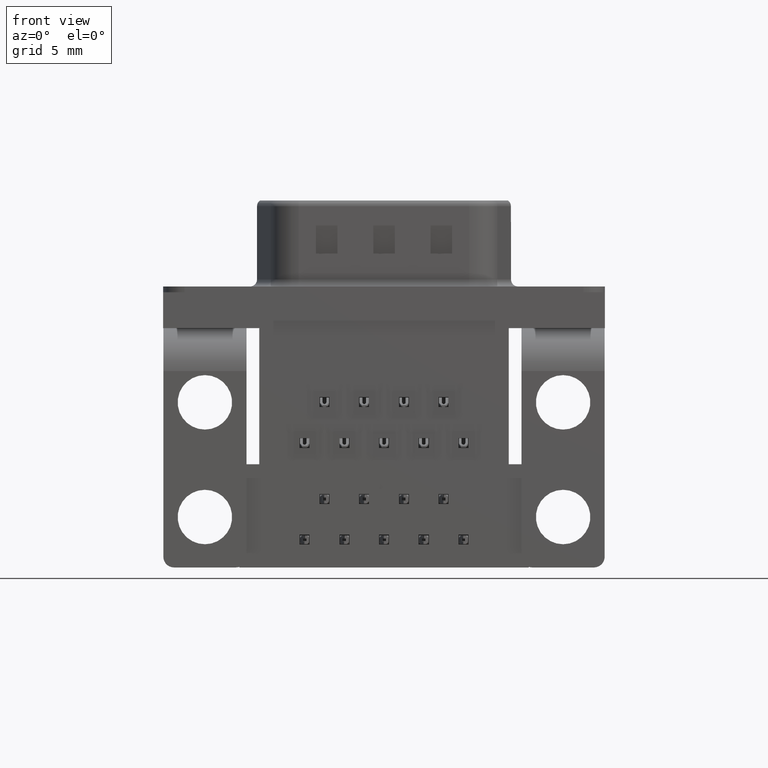
[diagram: clean part render]
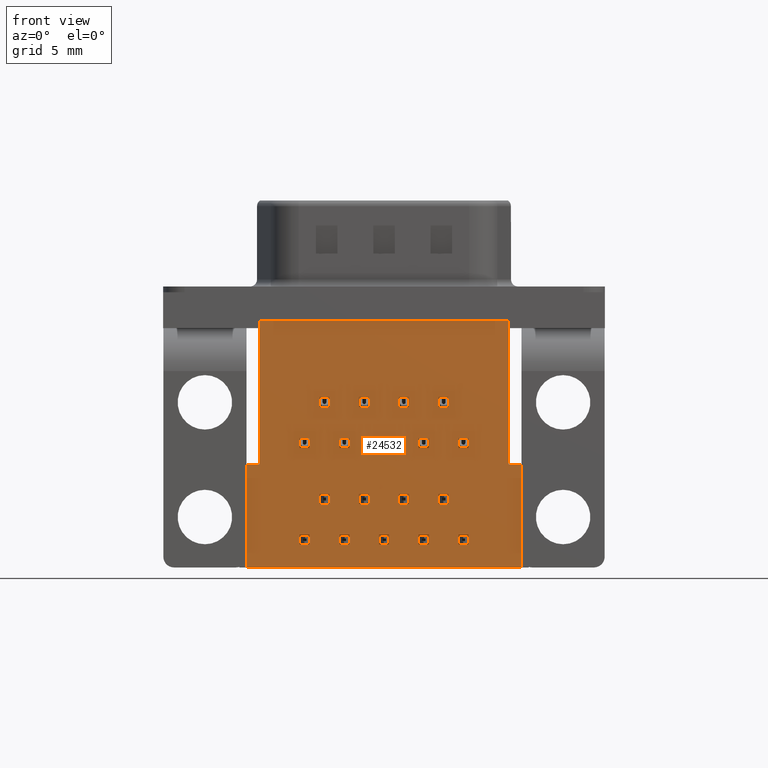
[diagram: same view with one face highlighted and labeled with its STEP entity id]
A machine part, front view. The second image highlights one B-rep face of the part: STEP entity #24532.
In plain terms, the highlighted planar face has unit normal (0, -1, 0).
Its self-contained STEP definition (entity closure, byte-faithful):
#91 = VECTOR ( 'NONE', #23050, 1000.000000000000000 ) ;
#117 = FACE_BOUND ( 'NONE', #23553, .T. ) ;
#151 = DIRECTION ( 'NONE',  ( -1.000000000000000000, -0.0000000000000000000, -0.0000000000000000000 ) ) ;
#232 = EDGE_CURVE ( 'NONE', #14148, #34290, #11617, .T. ) ;
#280 = FACE_BOUND ( 'NONE', #1846, .T. ) ;
#295 = VECTOR ( 'NONE', #21861, 1000.000000000000000 ) ;
#459 = CARTESIAN_POINT ( 'NONE',  ( 8.690000000000003055, -5.925000000000001599, -14.78720000000000212 ) ) ;
#564 = ORIENTED_EDGE ( 'NONE', *, *, #23347, .F. ) ;
#606 = CARTESIAN_POINT ( 'NONE',  ( 21.19999999999999218, -5.924999999999999822, -2.000000000000000000 ) ) ;
#678 = EDGE_CURVE ( 'NONE', #30499, #5759, #14402, .T. ) ;
#727 = VERTEX_POINT ( 'NONE', #9645 ) ;
#750 = VECTOR ( 'NONE', #2064, 1000.000000000000000 ) ;
#801 = DIRECTION ( 'NONE',  ( 4.956352788505156365E-15, -0.0000000000000000000, 1.000000000000000000 ) ) ;
#821 = CARTESIAN_POINT ( 'NONE',  ( 8.689999999999988844, -5.925000000000001599, -8.027200000000004110 ) ) ;
#822 = EDGE_CURVE ( 'NONE', #20680, #23960, #31979, .T. ) ;
#918 = EDGE_CURVE ( 'NONE', #2737, #18572, #7705, .T. ) ;
#969 = CARTESIAN_POINT ( 'NONE',  ( 18.38499999999999091, -5.925000000000003375, -10.16719999999999757 ) ) ;
#980 = VERTEX_POINT ( 'NONE', #606 ) ;
#1008 = DIRECTION ( 'NONE',  ( 4.956352788505156365E-15, -0.0000000000000000000, 1.000000000000000000 ) ) ;
#1047 = EDGE_CURVE ( 'NONE', #28734, #23772, #16148, .T. ) ;
#1124 = CARTESIAN_POINT ( 'NONE',  ( 10.07499999999998330, -5.925000000000001599, -16.92719999999999914 ) ) ;
#1184 = VERTEX_POINT ( 'NONE', #3759 ) ;
#1263 = LINE ( 'NONE', #9932, #23881 ) ;
#1282 = EDGE_CURVE ( 'NONE', #29125, #31529, #12398, .T. ) ;
#1356 = EDGE_CURVE ( 'NONE', #16678, #9942, #11295, .T. ) ;
#1413 = ORIENTED_EDGE ( 'NONE', *, *, #11856, .T. ) ;
#1544 = VECTOR ( 'NONE', #13514, 1000.000000000000000 ) ;
#1549 = CARTESIAN_POINT ( 'NONE',  ( 12.84499999999998465, -5.925000000000002487, -16.92719999999999914 ) ) ;
#1562 = VECTOR ( 'NONE', #9113, 1000.000000000000000 ) ;
#1634 = EDGE_LOOP ( 'NONE', ( #28608, #10564, #30595, #32843, #15238, #1413, #24920, #29091, #26674, #29934 ) ) ;
#1651 = CARTESIAN_POINT ( 'NONE',  ( 18.38499999999998735, -5.924999999999999822, -16.92719999999999914 ) ) ;
#1846 = EDGE_LOOP ( 'NONE', ( #29625, #8422, #14444, #22327 ) ) ;
#1861 = DIRECTION ( 'NONE',  ( 0.0000000000000000000, 0.0000000000000000000, -1.000000000000000000 ) ) ;
#1898 = VERTEX_POINT ( 'NONE', #17907 ) ;
#1931 = ORIENTED_EDGE ( 'NONE', *, *, #31048, .F. ) ;
#2015 = ORIENTED_EDGE ( 'NONE', *, *, #12274, .F. ) ;
#2064 = DIRECTION ( 'NONE',  ( -0.0000000000000000000, -0.0000000000000000000, 1.000000000000000000 ) ) ;
#2108 = ORIENTED_EDGE ( 'NONE', *, *, #22059, .F. ) ;
#2175 = CARTESIAN_POINT ( 'NONE',  ( 13.52999999999999403, -5.925000000000002487, -14.78720000000000034 ) ) ;
#2209 = CARTESIAN_POINT ( 'NONE',  ( 21.19999999999999218, -5.924999999999999822, -2.500000000000000444 ) ) ;
#2223 = EDGE_CURVE ( 'NONE', #13905, #17702, #23126, .T. ) ;
#2238 = FACE_BOUND ( 'NONE', #12497, .T. ) ;
#2253 = CARTESIAN_POINT ( 'NONE',  ( 18.38499999999999091, -5.924999999999999822, -10.16719999999999757 ) ) ;
#2287 = DIRECTION ( 'NONE',  ( 0.0000000000000000000, 0.0000000000000000000, -1.000000000000000000 ) ) ;
#2423 = LINE ( 'NONE', #23192, #8221 ) ;
#2448 = LINE ( 'NONE', #10051, #29060 ) ;
#2528 = DIRECTION ( 'NONE',  ( -1.000000000000000000, -0.0000000000000000000, -0.0000000000000000000 ) ) ;
#2550 = LINE ( 'NONE', #26308, #33159 ) ;
#2588 = CARTESIAN_POINT ( 'NONE',  ( 7.304999999999985505, -5.925000000000001599, -10.16719999999999935 ) ) ;
#2601 = ORIENTED_EDGE ( 'NONE', *, *, #14982, .F. ) ;
#2737 = VERTEX_POINT ( 'NONE', #30490 ) ;
#2769 = DIRECTION ( 'NONE',  ( 0.0000000000000000000, -1.000000000000000000, 0.0000000000000000000 ) ) ;
#2857 = EDGE_LOOP ( 'NONE', ( #17806, #4375, #33770, #27616 ) ) ;
#2870 = CARTESIAN_POINT ( 'NONE',  ( 3.789999999999997371, -5.924999999999999822, -2.500000000000000444 ) ) ;
#3049 = VECTOR ( 'NONE', #32177, 1000.000000000000000 ) ;
#3380 = VERTEX_POINT ( 'NONE', #25661 ) ;
#3382 = VERTEX_POINT ( 'NONE', #1549 ) ;
#3423 = EDGE_LOOP ( 'NONE', ( #2601, #29573, #18504, #29321 ) ) ;
#3477 = CARTESIAN_POINT ( 'NONE',  ( 11.45999999999999375, -5.924999999999999822, -7.327200000000002156 ) ) ;
#3486 = CARTESIAN_POINT ( 'NONE',  ( 6.604999999999982663, -5.925000000000001599, -17.62720000000000198 ) ) ;
#3515 = CARTESIAN_POINT ( 'NONE',  ( 14.91499999999998671, -5.925000000000002487, -16.92719999999999914 ) ) ;
#3589 = VERTEX_POINT ( 'NONE', #821 ) ;
#3709 = VERTEX_POINT ( 'NONE', #27920 ) ;
#3759 = CARTESIAN_POINT ( 'NONE',  ( 12.14499999999998536, -5.925000000000002487, -10.86719999999999864 ) ) ;
#3799 = VERTEX_POINT ( 'NONE', #7003 ) ;
#3869 = LINE ( 'NONE', #14634, #91 ) ;
#3924 = EDGE_LOOP ( 'NONE', ( #8217, #32754, #5484, #15186 ) ) ;
#4036 = EDGE_CURVE ( 'NONE', #21354, #14283, #12185, .T. ) ;
#4044 = CARTESIAN_POINT ( 'NONE',  ( 10.07499999999998330, -5.925000000000001599, -10.86720000000000041 ) ) ;
#4136 = CARTESIAN_POINT ( 'NONE',  ( 14.91499999999998671, -5.925000000000002487, -10.16719999999999757 ) ) ;
#4137 = CARTESIAN_POINT ( 'NONE',  ( 15.61499999999998600, -5.925000000000003375, -16.92719999999999914 ) ) ;
#4266 = EDGE_CURVE ( 'NONE', #16104, #11771, #33086, .T. ) ;
#4292 = CARTESIAN_POINT ( 'NONE',  ( 17.68499999999998806, -5.925000000000003375, -10.16719999999999757 ) ) ;
#4308 = DIRECTION ( 'NONE',  ( -1.000000000000000000, 0.0000000000000000000, 0.0000000000000000000 ) ) ;
#4312 = ORIENTED_EDGE ( 'NONE', *, *, #7113, .F. ) ;
#4329 = CARTESIAN_POINT ( 'NONE',  ( 12.14499999999998536, -5.925000000000002487, -17.62720000000000198 ) ) ;
#4348 = LINE ( 'NONE', #15104, #34395 ) ;
#4354 = CARTESIAN_POINT ( 'NONE',  ( 17.68499999999998806, -5.925000000000003375, -10.86719999999999864 ) ) ;
#4353 = VECTOR ( 'NONE', #12021, 1000.000000000000000 ) ;
#4374 = VECTOR ( 'NONE', #29148, 1000.000000000000000 ) ;
#4375 = ORIENTED_EDGE ( 'NONE', *, *, #21608, .F. ) ;
#4380 = DIRECTION ( 'NONE',  ( 1.000000000000000000, -1.239088197126279822E-15, 0.0000000000000000000 ) ) ;
#4393 = VECTOR ( 'NONE', #1861, 1000.000000000000000 ) ;
#4468 = CARTESIAN_POINT ( 'NONE',  ( 12.14499999999998536, -5.925000000000002487, -17.62720000000000198 ) ) ;
#4503 = LINE ( 'NONE', #4683, #28898 ) ;
#4518 = LINE ( 'NONE', #13169, #18480 ) ;
#4541 = EDGE_CURVE ( 'NONE', #19804, #9103, #13216, .T. ) ;
#4646 = EDGE_CURVE ( 'NONE', #22242, #21084, #20946, .T. ) ;
#4663 = CARTESIAN_POINT ( 'NONE',  ( 16.29999999999999005, -5.925000000000003375, -7.327200000000001268 ) ) ;
#4683 = CARTESIAN_POINT ( 'NONE',  ( 15.61499999999998600, -5.925000000000003375, -16.92719999999999914 ) ) ;
#4699 = CARTESIAN_POINT ( 'NONE',  ( 13.52999999999999403, -5.925000000000002487, -14.08719999999999928 ) ) ;
#4746 = LINE ( 'NONE', #9517, #34783 ) ;
#4799 = LINE ( 'NONE', #15547, #25664 ) ;
#4941 = LINE ( 'NONE', #26410, #32790 ) ;
#4949 = VECTOR ( 'NONE', #7102, 1000.000000000000000 ) ;
#5088 = CARTESIAN_POINT ( 'NONE',  ( 10.75999999999999446, -5.925000000000001599, -14.08719999999999928 ) ) ;
#5113 = CARTESIAN_POINT ( 'NONE',  ( 9.374999999999984013, -5.925000000000001599, -17.62720000000000198 ) ) ;
#5136 = VECTOR ( 'NONE', #28178, 1000.000000000000000 ) ;
#5160 = VECTOR ( 'NONE', #151, 1000.000000000000000 ) ;
#5293 = VERTEX_POINT ( 'NONE', #33340 ) ;
#5382 = LINE ( 'NONE', #24535, #13043 ) ;
#5471 = VECTOR ( 'NONE', #14698, 1000.000000000000000 ) ;
#5484 = ORIENTED_EDGE ( 'NONE', *, *, #5628, .F. ) ;
#5598 = VERTEX_POINT ( 'NONE', #6048 ) ;
#5628 = EDGE_CURVE ( 'NONE', #8246, #31333, #20297, .T. ) ;
#5688 = EDGE_CURVE ( 'NONE', #22279, #3380, #33133, .T. ) ;
#5759 = VERTEX_POINT ( 'NONE', #32369 ) ;
#5765 = VECTOR ( 'NONE', #29472, 1000.000000000000000 ) ;
#5868 = EDGE_LOOP ( 'NONE', ( #19425, #564, #9329, #6978 ) ) ;
#5942 = CARTESIAN_POINT ( 'NONE',  ( 14.91499999999998671, -5.925000000000002487, -16.92719999999999914 ) ) ;
#6048 = CARTESIAN_POINT ( 'NONE',  ( 12.14499999999998536, -5.925000000000002487, -16.92719999999999914 ) ) ;
#6055 = DIRECTION ( 'NONE',  ( -9.912705577010287487E-15, -0.0000000000000000000, 1.000000000000000000 ) ) ;
#6224 = CARTESIAN_POINT ( 'NONE',  ( 14.22999999999999332, -5.924999999999999822, -7.327200000000001268 ) ) ;
#6334 = DIRECTION ( 'NONE',  ( 0.0000000000000000000, 0.0000000000000000000, -1.000000000000000000 ) ) ;
#6417 = EDGE_LOOP ( 'NONE', ( #12957, #33348, #23156, #20797 ) ) ;
#6447 = VERTEX_POINT ( 'NONE', #33877 ) ;
#6515 = EDGE_CURVE ( 'NONE', #24044, #1184, #15774, .T. ) ;
#6677 = DIRECTION ( 'NONE',  ( -1.000000000000000000, -0.0000000000000000000, -0.0000000000000000000 ) ) ;
#6740 = LINE ( 'NONE', #17818, #4353 ) ;
#6753 = LINE ( 'NONE', #23097, #28347 ) ;
#6819 = DIRECTION ( 'NONE',  ( 4.956352788505162676E-15, -0.0000000000000000000, 1.000000000000000000 ) ) ;
#6891 = EDGE_CURVE ( 'NONE', #22531, #2737, #4348, .T. ) ;
#6978 = ORIENTED_EDGE ( 'NONE', *, *, #16746, .F. ) ;
#6998 = CARTESIAN_POINT ( 'NONE',  ( 2.899999999999996358, -5.924999999999999822, -12.00000000000000000 ) ) ;
#7003 = CARTESIAN_POINT ( 'NONE',  ( 14.22999999999999332, -5.925000000000002487, -8.027200000000002333 ) ) ;
#7079 = LINE ( 'NONE', #20453, #12869 ) ;
#7102 = DIRECTION ( 'NONE',  ( 4.956352788505156365E-15, -0.0000000000000000000, 1.000000000000000000 ) ) ;
#7104 = DIRECTION ( 'NONE',  ( 1.000000000000000000, 0.0000000000000000000, 0.0000000000000000000 ) ) ;
#7113 = EDGE_CURVE ( 'NONE', #34781, #19804, #34815, .T. ) ;
#7122 = CARTESIAN_POINT ( 'NONE',  ( 9.374999999999984013, -5.925000000000001599, -10.16719999999999935 ) ) ;
#7154 = CARTESIAN_POINT ( 'NONE',  ( 10.75999999999999091, -5.925000000000001599, -14.78720000000000034 ) ) ;
#7204 = CARTESIAN_POINT ( 'NONE',  ( 6.604999999999982663, -5.925000000000001599, -16.92719999999999914 ) ) ;
#7206 = VERTEX_POINT ( 'NONE', #24922 ) ;
#7258 = ORIENTED_EDGE ( 'NONE', *, *, #232, .F. ) ;
#7302 = VERTEX_POINT ( 'NONE', #8425 ) ;
#7395 = ORIENTED_EDGE ( 'NONE', *, *, #6891, .F. ) ;
#7463 = CARTESIAN_POINT ( 'NONE',  ( 6.604999999999982663, -5.925000000000001599, -10.16719999999999935 ) ) ;
#7480 = VECTOR ( 'NONE', #18270, 1000.000000000000000 ) ;
#7599 = CARTESIAN_POINT ( 'NONE',  ( 18.38499999999998735, -5.925000000000003375, -10.86719999999999864 ) ) ;
#7602 = ORIENTED_EDGE ( 'NONE', *, *, #4541, .F. ) ;
#7618 = VERTEX_POINT ( 'NONE', #19577 ) ;
#7624 = DIRECTION ( 'NONE',  ( -1.000000000000000000, 0.0000000000000000000, 0.0000000000000000000 ) ) ;
#7705 = LINE ( 'NONE', #4699, #4374 ) ;
#7730 = DIRECTION ( 'NONE',  ( -1.000000000000000000, -0.0000000000000000000, -0.0000000000000000000 ) ) ;
#7853 = LINE ( 'NONE', #34397, #17858 ) ;
#7892 = DIRECTION ( 'NONE',  ( -1.000000000000000000, 1.239088197126285936E-15, -0.0000000000000000000 ) ) ;
#7923 = CARTESIAN_POINT ( 'NONE',  ( 16.29999999999999361, -5.925000000000003375, -14.08719999999999928 ) ) ;
#7943 = DIRECTION ( 'NONE',  ( 1.000000000000000000, 0.0000000000000000000, 0.0000000000000000000 ) ) ;
#8141 = CARTESIAN_POINT ( 'NONE',  ( 8.689999999999995950, -5.925000000000001599, -14.08720000000000105 ) ) ;
#8152 = LINE ( 'NONE', #10616, #17936 ) ;
#8217 = ORIENTED_EDGE ( 'NONE', *, *, #25810, .F. ) ;
#8221 = VECTOR ( 'NONE', #31282, 1000.000000000000000 ) ;
#8246 = VERTEX_POINT ( 'NONE', #22827 ) ;
#8304 = CARTESIAN_POINT ( 'NONE',  ( 17.68499999999998806, -5.925000000000003375, -10.86719999999999864 ) ) ;
#8367 = VECTOR ( 'NONE', #33089, 1000.000000000000000 ) ;
#8422 = ORIENTED_EDGE ( 'NONE', *, *, #16650, .F. ) ;
#8425 = CARTESIAN_POINT ( 'NONE',  ( 21.19999999999999218, -5.924999999999999822, -12.00000000000000000 ) ) ;
#8540 = CARTESIAN_POINT ( 'NONE',  ( 9.374999999999984013, -5.925000000000001599, -10.86720000000000041 ) ) ;
#8573 = EDGE_CURVE ( 'NONE', #33998, #19348, #11901, .T. ) ;
#8747 = DIRECTION ( 'NONE',  ( 0.0000000000000000000, 0.0000000000000000000, -1.000000000000000000 ) ) ;
#9002 = DIRECTION ( 'NONE',  ( 0.0000000000000000000, 0.0000000000000000000, -1.000000000000000000 ) ) ;
#9014 = LINE ( 'NONE', #28328, #27624 ) ;
#9051 = CARTESIAN_POINT ( 'NONE',  ( 11.45999999999999375, -5.925000000000002487, -14.08719999999999928 ) ) ;
#9103 = VERTEX_POINT ( 'NONE', #7463 ) ;
#9113 = DIRECTION ( 'NONE',  ( -9.912705577010312730E-15, -0.0000000000000000000, 1.000000000000000000 ) ) ;
#9170 = VECTOR ( 'NONE', #4308, 1000.000000000000000 ) ;
#9207 = LINE ( 'NONE', #11836, #19036 ) ;
#9249 = VERTEX_POINT ( 'NONE', #11646 ) ;
#9329 = ORIENTED_EDGE ( 'NONE', *, *, #10809, .F. ) ;
#9517 = CARTESIAN_POINT ( 'NONE',  ( 14.91499999999998671, -5.925000000000002487, -17.62720000000000198 ) ) ;
#9634 = VERTEX_POINT ( 'NONE', #7154 ) ;
#9645 = CARTESIAN_POINT ( 'NONE',  ( 16.29999999999999005, -5.924999999999999822, -14.78720000000000034 ) ) ;
#9724 = VERTEX_POINT ( 'NONE', #17531 ) ;
#9729 = VERTEX_POINT ( 'NONE', #4137 ) ;
#9848 = EDGE_CURVE ( 'NONE', #13881, #24471, #22247, .T. ) ;
#9932 = CARTESIAN_POINT ( 'NONE',  ( 22.08999999999999275, -5.924999999999999822, -12.00000000000000000 ) ) ;
#9939 = LINE ( 'NONE', #23457, #29303 ) ;
#9942 = VERTEX_POINT ( 'NONE', #34194 ) ;
#9948 = ORIENTED_EDGE ( 'NONE', *, *, #4646, .F. ) ;
#10006 = DIRECTION ( 'NONE',  ( -0.0000000000000000000, -0.0000000000000000000, 1.000000000000000000 ) ) ;
#10051 = CARTESIAN_POINT ( 'NONE',  ( 11.45999999999999375, -5.925000000000002487, -7.327200000000002156 ) ) ;
#10082 = EDGE_CURVE ( 'NONE', #22837, #34781, #14313, .T. ) ;
#10374 = FACE_BOUND ( 'NONE', #20307, .T. ) ;
#10399 = VECTOR ( 'NONE', #13366, 1000.000000000000000 ) ;
#10400 = VERTEX_POINT ( 'NONE', #28063 ) ;
#10457 = VECTOR ( 'NONE', #13541, 1000.000000000000000 ) ;
#10506 = VERTEX_POINT ( 'NONE', #31414 ) ;
#10513 = CARTESIAN_POINT ( 'NONE',  ( 17.68499999999998806, -5.925000000000003375, -17.62720000000000198 ) ) ;
#10543 = FACE_BOUND ( 'NONE', #21959, .T. ) ;
#10564 = ORIENTED_EDGE ( 'NONE', *, *, #27101, .T. ) ;
#10609 = EDGE_CURVE ( 'NONE', #9724, #3382, #5382, .T. ) ;
#10616 = CARTESIAN_POINT ( 'NONE',  ( 14.22999999999999332, -5.925000000000002487, -14.08719999999999928 ) ) ;
#10695 = EDGE_CURVE ( 'NONE', #17112, #25824, #14847, .T. ) ;
#10704 = VECTOR ( 'NONE', #2528, 1000.000000000000000 ) ;
#10751 = CARTESIAN_POINT ( 'NONE',  ( 8.689999999999995950, -5.925000000000001599, -14.08720000000000105 ) ) ;
#10809 = EDGE_CURVE ( 'NONE', #23873, #23199, #21001, .T. ) ;
#10814 = ORIENTED_EDGE ( 'NONE', *, *, #15625, .F. ) ;
#10884 = FACE_BOUND ( 'NONE', #6417, .T. ) ;
#10890 = VECTOR ( 'NONE', #17100, 1000.000000000000000 ) ;
#10920 = CARTESIAN_POINT ( 'NONE',  ( 6.604999999999982663, -5.925000000000001599, -10.16719999999999935 ) ) ;
#11050 = FACE_BOUND ( 'NONE', #25235, .T. ) ;
#11075 = CARTESIAN_POINT ( 'NONE',  ( 3.789999999999997371, -5.924999999999999822, -2.000000000000000000 ) ) ;
#11082 = CARTESIAN_POINT ( 'NONE',  ( 13.52999999999999403, -5.925000000000002487, -8.027200000000002333 ) ) ;
#11100 = ORIENTED_EDGE ( 'NONE', *, *, #16924, .F. ) ;
#11136 = CARTESIAN_POINT ( 'NONE',  ( 11.46000000000000085, -5.925000000000002487, -14.78720000000000034 ) ) ;
#11151 = LINE ( 'NONE', #13965, #22021 ) ;
#11175 = CARTESIAN_POINT ( 'NONE',  ( 9.374999999999984013, -5.925000000000001599, -16.92719999999999914 ) ) ;
#11230 = DIRECTION ( 'NONE',  ( 1.000000000000000000, -0.0000000000000000000, -0.0000000000000000000 ) ) ;
#11261 = LINE ( 'NONE', #24958, #15539 ) ;
#11276 = ORIENTED_EDGE ( 'NONE', *, *, #21027, .F. ) ;
#11295 = LINE ( 'NONE', #3515, #28546 ) ;
#11442 = LINE ( 'NONE', #12245, #9170 ) ;
#11457 = EDGE_CURVE ( 'NONE', #18875, #31867, #11442, .T. ) ;
#11494 = DIRECTION ( 'NONE',  ( 1.000000000000000000, 0.0000000000000000000, 0.0000000000000000000 ) ) ;
#11518 = CARTESIAN_POINT ( 'NONE',  ( 16.99999999999999289, -5.925000000000003375, -14.08719999999999928 ) ) ;
#11571 = CARTESIAN_POINT ( 'NONE',  ( 7.304999999999988169, -5.924999999999999822, -17.62720000000000198 ) ) ;
#11617 = LINE ( 'NONE', #19726, #30291 ) ;
#11646 = CARTESIAN_POINT ( 'NONE',  ( 10.75999999999999446, -5.925000000000001599, -14.08719999999999928 ) ) ;
#11771 = VERTEX_POINT ( 'NONE', #18940 ) ;
#11794 = ORIENTED_EDGE ( 'NONE', *, *, #30753, .F. ) ;
#11836 = CARTESIAN_POINT ( 'NONE',  ( 12.14499999999998536, -5.925000000000002487, -16.92719999999999914 ) ) ;
#11856 = EDGE_CURVE ( 'NONE', #10506, #7618, #28026, .T. ) ;
#11901 = LINE ( 'NONE', #459, #25397 ) ;
#12021 = DIRECTION ( 'NONE',  ( -1.000000000000000000, -0.0000000000000000000, -0.0000000000000000000 ) ) ;
#12111 = ORIENTED_EDGE ( 'NONE', *, *, #32593, .F. ) ;
#12152 = ORIENTED_EDGE ( 'NONE', *, *, #32502, .F. ) ;
#12172 = VERTEX_POINT ( 'NONE', #4044 ) ;
#12185 = LINE ( 'NONE', #34171, #5136 ) ;
#12245 = CARTESIAN_POINT ( 'NONE',  ( 22.08999999999999275, -5.924999999999999822, -12.00000000000000000 ) ) ;
#12273 = VECTOR ( 'NONE', #8747, 1000.000000000000000 ) ;
#12274 = EDGE_CURVE ( 'NONE', #21084, #27522, #30979, .T. ) ;
#12353 = DIRECTION ( 'NONE',  ( -1.000000000000000000, 0.0000000000000000000, 0.0000000000000000000 ) ) ;
#12398 = LINE ( 'NONE', #21337, #29132 ) ;
#12456 = VERTEX_POINT ( 'NONE', #7599 ) ;
#12467 = EDGE_CURVE ( 'NONE', #5598, #18322, #4941, .T. ) ;
#12479 = ORIENTED_EDGE ( 'NONE', *, *, #32228, .F. ) ;
#12482 = CARTESIAN_POINT ( 'NONE',  ( 14.91499999999998671, -5.925000000000002487, -10.86719999999999864 ) ) ;
#12497 = EDGE_LOOP ( 'NONE', ( #11100, #10814, #16564, #22983 ) ) ;
#12536 = CARTESIAN_POINT ( 'NONE',  ( 9.374999999999984013, -5.925000000000001599, -10.86720000000000041 ) ) ;
#12703 = ORIENTED_EDGE ( 'NONE', *, *, #25880, .F. ) ;
#12763 = EDGE_CURVE ( 'NONE', #26455, #31867, #18467, .T. ) ;
#12840 = VECTOR ( 'NONE', #31983, 1000.000000000000000 ) ;
#12869 = VECTOR ( 'NONE', #12353, 1000.000000000000000 ) ;
#12930 = VERTEX_POINT ( 'NONE', #7923 ) ;
#12948 = EDGE_CURVE ( 'NONE', #31333, #3589, #26722, .T. ) ;
#12950 = VERTEX_POINT ( 'NONE', #16014 ) ;
#12957 = ORIENTED_EDGE ( 'NONE', *, *, #14869, .F. ) ;
#12982 = EDGE_CURVE ( 'NONE', #9729, #16678, #24086, .T. ) ;
#13024 = ORIENTED_EDGE ( 'NONE', *, *, #20614, .F. ) ;
#13043 = VECTOR ( 'NONE', #6055, 1000.000000000000000 ) ;
#13109 = ORIENTED_EDGE ( 'NONE', *, *, #18003, .F. ) ;
#13161 = EDGE_CURVE ( 'NONE', #3709, #9729, #4503, .T. ) ;
#13169 = CARTESIAN_POINT ( 'NONE',  ( 17.68499999999998806, -5.925000000000003375, -10.16719999999999757 ) ) ;
#13173 = CARTESIAN_POINT ( 'NONE',  ( 21.19999999999999218, -5.924999999999999822, -2.000000000000000000 ) ) ;
#13216 = LINE ( 'NONE', #10920, #5160 ) ;
#13230 = DIRECTION ( 'NONE',  ( -1.000000000000000000, -0.0000000000000000000, -0.0000000000000000000 ) ) ;
#13366 = DIRECTION ( 'NONE',  ( 1.000000000000000000, 0.0000000000000000000, 0.0000000000000000000 ) ) ;
#13514 = DIRECTION ( 'NONE',  ( -9.912705577010287487E-15, -0.0000000000000000000, 1.000000000000000000 ) ) ;
#13531 = PLANE ( 'NONE',  #25693 ) ;
#13541 = DIRECTION ( 'NONE',  ( -1.000000000000000000, -0.0000000000000000000, -0.0000000000000000000 ) ) ;
#13697 = DIRECTION ( 'NONE',  ( 0.0000000000000000000, -0.0000000000000000000, -1.000000000000000000 ) ) ;
#13698 = ORIENTED_EDGE ( 'NONE', *, *, #1356, .F. ) ;
#13725 = LINE ( 'NONE', #11075, #24611 ) ;
#13819 = LINE ( 'NONE', #11175, #25099 ) ;
#13881 = VERTEX_POINT ( 'NONE', #7204 ) ;
#13892 = DIRECTION ( 'NONE',  ( 2.602085213965210642E-16, 0.0000000000000000000, -1.000000000000000000 ) ) ;
#13905 = VERTEX_POINT ( 'NONE', #2253 ) ;
#13965 = CARTESIAN_POINT ( 'NONE',  ( 6.604999999999982663, -5.925000000000001599, -17.62720000000000198 ) ) ;
#14024 = DIRECTION ( 'NONE',  ( 1.000000000000000000, -0.0000000000000000000, -0.0000000000000000000 ) ) ;
#14033 = CARTESIAN_POINT ( 'NONE',  ( 14.22999999999999332, -5.925000000000002487, -14.08719999999999928 ) ) ;
#14147 = VERTEX_POINT ( 'NONE', #4663 ) ;
#14148 = VERTEX_POINT ( 'NONE', #31586 ) ;
#14262 = EDGE_CURVE ( 'NONE', #20531, #30499, #18590, .T. ) ;
#14283 = VERTEX_POINT ( 'NONE', #11518 ) ;
#14313 = LINE ( 'NONE', #32930, #19778 ) ;
#14402 = LINE ( 'NONE', #25106, #29194 ) ;
#14442 = CARTESIAN_POINT ( 'NONE',  ( 9.374999999999984013, -5.925000000000001599, -10.16719999999999935 ) ) ;
#14444 = ORIENTED_EDGE ( 'NONE', *, *, #10695, .F. ) ;
#14510 = EDGE_LOOP ( 'NONE', ( #28457, #30521, #32684, #33509 ) ) ;
#14579 = VECTOR ( 'NONE', #33027, 1000.000000000000000 ) ;
#14634 = CARTESIAN_POINT ( 'NONE',  ( 17.00000000000000000, -5.925000000000003375, -14.78720000000000034 ) ) ;
#14698 = DIRECTION ( 'NONE',  ( 0.0000000000000000000, 0.0000000000000000000, -1.000000000000000000 ) ) ;
#14847 = LINE ( 'NONE', #19785, #32158 ) ;
#14869 = EDGE_CURVE ( 'NONE', #9634, #22279, #24497, .T. ) ;
#14978 = ORIENTED_EDGE ( 'NONE', *, *, #10082, .F. ) ;
#14982 = EDGE_CURVE ( 'NONE', #12930, #727, #9014, .T. ) ;
#15013 = EDGE_CURVE ( 'NONE', #727, #21354, #3869, .T. ) ;
#15021 = DIRECTION ( 'NONE',  ( -0.0000000000000000000, -0.0000000000000000000, 1.000000000000000000 ) ) ;
#15084 = DIRECTION ( 'NONE',  ( 1.000000000000000000, 0.0000000000000000000, 0.0000000000000000000 ) ) ;
#15104 = CARTESIAN_POINT ( 'NONE',  ( 14.22999999999999332, -5.925000000000002487, -14.08719999999999928 ) ) ;
#15129 = LINE ( 'NONE', #25837, #22396 ) ;
#15186 = ORIENTED_EDGE ( 'NONE', *, *, #21307, .F. ) ;
#15226 = CARTESIAN_POINT ( 'NONE',  ( 9.374999999999984013, -5.925000000000001599, -16.92719999999999914 ) ) ;
#15238 = ORIENTED_EDGE ( 'NONE', *, *, #31228, .F. ) ;
#15392 = VERTEX_POINT ( 'NONE', #32878 ) ;
#15448 = EDGE_CURVE ( 'NONE', #12172, #29125, #16886, .T. ) ;
#15470 = CARTESIAN_POINT ( 'NONE',  ( 3.789999999999997371, -5.924999999999999822, -2.000000000000000000 ) ) ;
#15511 = DIRECTION ( 'NONE',  ( -0.0000000000000000000, -0.0000000000000000000, 1.000000000000000000 ) ) ;
#15539 = VECTOR ( 'NONE', #20030, 1000.000000000000000 ) ;
#15547 = CARTESIAN_POINT ( 'NONE',  ( 3.789999999999997371, -5.924999999999999822, -2.000000000000000000 ) ) ;
#15625 = EDGE_CURVE ( 'NONE', #25700, #12456, #20388, .T. ) ;
#15774 = LINE ( 'NONE', #21389, #5765 ) ;
#15846 = EDGE_CURVE ( 'NONE', #7618, #7302, #1263, .T. ) ;
#15853 = EDGE_CURVE ( 'NONE', #34290, #28734, #6753, .T. ) ;
#15947 = DIRECTION ( 'NONE',  ( 1.000000000000000000, 0.0000000000000000000, 0.0000000000000000000 ) ) ;
#16014 = CARTESIAN_POINT ( 'NONE',  ( 14.23000000000000043, -5.924999999999999822, -14.78720000000000034 ) ) ;
#16104 = VERTEX_POINT ( 'NONE', #16595 ) ;
#16148 = LINE ( 'NONE', #24396, #1544 ) ;
#16204 = VECTOR ( 'NONE', #29988, 1000.000000000000000 ) ;
#16281 = ORIENTED_EDGE ( 'NONE', *, *, #15853, .F. ) ;
#16339 = FACE_BOUND ( 'NONE', #29845, .T. ) ;
#16352 = EDGE_CURVE ( 'NONE', #23772, #14148, #26408, .T. ) ;
#16403 = ORIENTED_EDGE ( 'NONE', *, *, #12467, .F. ) ;
#16564 = ORIENTED_EDGE ( 'NONE', *, *, #27264, .F. ) ;
#16568 = LINE ( 'NONE', #8141, #34142 ) ;
#16595 = CARTESIAN_POINT ( 'NONE',  ( 12.84499999999998465, -5.925000000000002487, -10.86719999999999864 ) ) ;
#16599 = VECTOR ( 'NONE', #13230, 1000.000000000000000 ) ;
#16644 = EDGE_CURVE ( 'NONE', #980, #15392, #26175, .T. ) ;
#16650 = EDGE_CURVE ( 'NONE', #25824, #7206, #2423, .T. ) ;
#16678 = VERTEX_POINT ( 'NONE', #5942 ) ;
#16746 = EDGE_CURVE ( 'NONE', #21100, #23873, #18827, .T. ) ;
#16846 = EDGE_CURVE ( 'NONE', #1898, #17112, #30899, .T. ) ;
#16874 = CARTESIAN_POINT ( 'NONE',  ( 9.374999999999984013, -5.925000000000001599, -17.62720000000000198 ) ) ;
#16886 = LINE ( 'NONE', #25125, #30610 ) ;
#16924 = EDGE_CURVE ( 'NONE', #12456, #13905, #24931, .T. ) ;
#16927 = VERTEX_POINT ( 'NONE', #11571 ) ;
#17100 = DIRECTION ( 'NONE',  ( -9.912705577010287487E-15, -0.0000000000000000000, 1.000000000000000000 ) ) ;
#17112 = VERTEX_POINT ( 'NONE', #20351 ) ;
#17119 = CARTESIAN_POINT ( 'NONE',  ( 10.75999999999999091, -5.925000000000001599, -8.027200000000002333 ) ) ;
#17133 = LINE ( 'NONE', #17300, #4949 ) ;
#17142 = DIRECTION ( 'NONE',  ( 0.0000000000000000000, 0.0000000000000000000, -1.000000000000000000 ) ) ;
#17300 = CARTESIAN_POINT ( 'NONE',  ( 15.61499999999998956, -5.925000000000003375, -10.16719999999999757 ) ) ;
#17450 = ORIENTED_EDGE ( 'NONE', *, *, #32896, .F. ) ;
#17455 = DIRECTION ( 'NONE',  ( -1.000000000000000000, -0.0000000000000000000, -0.0000000000000000000 ) ) ;
#17472 = DIRECTION ( 'NONE',  ( 0.0000000000000000000, 0.0000000000000000000, -1.000000000000000000 ) ) ;
#17531 = CARTESIAN_POINT ( 'NONE',  ( 12.84499999999999176, -5.924999999999999822, -17.62720000000000198 ) ) ;
#17619 = CARTESIAN_POINT ( 'NONE',  ( 10.07499999999998330, -5.925000000000001599, -16.92719999999999914 ) ) ;
#17637 = VERTEX_POINT ( 'NONE', #21999 ) ;
#17677 = LINE ( 'NONE', #28395, #26316 ) ;
#17702 = VERTEX_POINT ( 'NONE', #28116 ) ;
#17806 = ORIENTED_EDGE ( 'NONE', *, *, #8573, .F. ) ;
#17818 = CARTESIAN_POINT ( 'NONE',  ( 7.989999999999990443, -5.925000000000001599, -7.327200000000002156 ) ) ;
#17858 = VECTOR ( 'NONE', #18584, 1000.000000000000000 ) ;
#17907 = CARTESIAN_POINT ( 'NONE',  ( 15.61499999999998956, -5.924999999999999822, -10.16719999999999757 ) ) ;
#17936 = VECTOR ( 'NONE', #32064, 1000.000000000000000 ) ;
#17985 = VECTOR ( 'NONE', #14024, 1000.000000000000000 ) ;
#18003 = EDGE_CURVE ( 'NONE', #18322, #9724, #28437, .T. ) ;
#18063 = CARTESIAN_POINT ( 'NONE',  ( 10.07499999999998685, -5.924999999999999822, -10.16719999999999935 ) ) ;
#18164 = VECTOR ( 'NONE', #15021, 1000.000000000000000 ) ;
#18270 = DIRECTION ( 'NONE',  ( 4.956352788505156365E-15, -0.0000000000000000000, 1.000000000000000000 ) ) ;
#18279 = DIRECTION ( 'NONE',  ( -4.956352788505156365E-15, 0.0000000000000000000, -1.000000000000000000 ) ) ;
#18322 = VERTEX_POINT ( 'NONE', #4468 ) ;
#18345 = EDGE_CURVE ( 'NONE', #31529, #26511, #28394, .T. ) ;
#18467 = LINE ( 'NONE', #28654, #750 ) ;
#18480 = VECTOR ( 'NONE', #34802, 1000.000000000000000 ) ;
#18504 = ORIENTED_EDGE ( 'NONE', *, *, #4036, .F. ) ;
#18572 = VERTEX_POINT ( 'NONE', #2175 ) ;
#18584 = DIRECTION ( 'NONE',  ( -9.912705577010287487E-15, -0.0000000000000000000, 1.000000000000000000 ) ) ;
#18590 = LINE ( 'NONE', #29294, #19432 ) ;
#18664 = VERTEX_POINT ( 'NONE', #2870 ) ;
#18815 = ORIENTED_EDGE ( 'NONE', *, *, #13161, .F. ) ;
#18819 = FACE_BOUND ( 'NONE', #23454, .T. ) ;
#18827 = LINE ( 'NONE', #32006, #10457 ) ;
#18875 = VERTEX_POINT ( 'NONE', #24435 ) ;
#18940 = CARTESIAN_POINT ( 'NONE',  ( 12.84499999999998820, -5.924999999999999822, -10.16719999999999757 ) ) ;
#19036 = VECTOR ( 'NONE', #17455, 1000.000000000000000 ) ;
#19163 = FACE_BOUND ( 'NONE', #3924, .T. ) ;
#19238 = CARTESIAN_POINT ( 'NONE',  ( 6.604999999999982663, -5.925000000000001599, -10.86720000000000041 ) ) ;
#19348 = VERTEX_POINT ( 'NONE', #29505 ) ;
#19425 = ORIENTED_EDGE ( 'NONE', *, *, #27308, .F. ) ;
#19432 = VECTOR ( 'NONE', #15947, 1000.000000000000000 ) ;
#19441 = LINE ( 'NONE', #17119, #30704 ) ;
#19577 = CARTESIAN_POINT ( 'NONE',  ( 22.08999999999999275, -5.924999999999999822, -12.00000000000000000 ) ) ;
#19585 = DIRECTION ( 'NONE',  ( -1.000000000000000000, -0.0000000000000000000, -0.0000000000000000000 ) ) ;
#19726 = CARTESIAN_POINT ( 'NONE',  ( 17.68499999999998806, -5.925000000000003375, -16.92719999999999914 ) ) ;
#19778 = VECTOR ( 'NONE', #32605, 1000.000000000000000 ) ;
#19785 = CARTESIAN_POINT ( 'NONE',  ( 14.91499999999998671, -5.925000000000002487, -10.16719999999999757 ) ) ;
#19798 = CARTESIAN_POINT ( 'NONE',  ( 6.604999999999982663, -5.925000000000001599, -16.92719999999999914 ) ) ;
#19804 = VERTEX_POINT ( 'NONE', #29811 ) ;
#19906 = EDGE_CURVE ( 'NONE', #6447, #10400, #19441, .T. ) ;
#19927 = ORIENTED_EDGE ( 'NONE', *, *, #9848, .F. ) ;
#20030 = DIRECTION ( 'NONE',  ( 1.000000000000000000, 0.0000000000000000000, 0.0000000000000000000 ) ) ;
#20076 = DIRECTION ( 'NONE',  ( -4.956352788505156365E-15, 0.0000000000000000000, -1.000000000000000000 ) ) ;
#20152 = EDGE_CURVE ( 'NONE', #14283, #12930, #31891, .T. ) ;
#20297 = LINE ( 'NONE', #31014, #21804 ) ;
#20307 = EDGE_LOOP ( 'NONE', ( #32227, #16281, #7258, #22610 ) ) ;
#20317 = ORIENTED_EDGE ( 'NONE', *, *, #24096, .F. ) ;
#20331 = DIRECTION ( 'NONE',  ( -1.000000000000000000, -0.0000000000000000000, -0.0000000000000000000 ) ) ;
#20341 = ORIENTED_EDGE ( 'NONE', *, *, #14262, .F. ) ;
#20347 = ORIENTED_EDGE ( 'NONE', *, *, #19906, .F. ) ;
#20351 = CARTESIAN_POINT ( 'NONE',  ( 14.91499999999998671, -5.925000000000002487, -10.16719999999999757 ) ) ;
#20384 = DIRECTION ( 'NONE',  ( -1.000000000000000000, 0.0000000000000000000, 0.0000000000000000000 ) ) ;
#20388 = LINE ( 'NONE', #4354, #26111 ) ;
#20424 = EDGE_LOOP ( 'NONE', ( #13024, #20347, #27623, #28420 ) ) ;
#20453 = CARTESIAN_POINT ( 'NONE',  ( 22.08999999999999275, -5.924999999999999822, -19.20000000000000284 ) ) ;
#20477 = DIRECTION ( 'NONE',  ( -1.000000000000000000, 0.0000000000000000000, 0.0000000000000000000 ) ) ;
#20531 = VERTEX_POINT ( 'NONE', #24112 ) ;
#20614 = EDGE_CURVE ( 'NONE', #10400, #20680, #2448, .T. ) ;
#20680 = VERTEX_POINT ( 'NONE', #3477 ) ;
#20715 = VERTEX_POINT ( 'NONE', #10751 ) ;
#20797 = ORIENTED_EDGE ( 'NONE', *, *, #5688, .F. ) ;
#20946 = LINE ( 'NONE', #5113, #26496 ) ;
#20953 = ORIENTED_EDGE ( 'NONE', *, *, #6515, .F. ) ;
#20966 = ORIENTED_EDGE ( 'NONE', *, *, #34541, .F. ) ;
#21001 = LINE ( 'NONE', #34545, #32180 ) ;
#21027 = EDGE_CURVE ( 'NONE', #16927, #5293, #7853, .T. ) ;
#21084 = VERTEX_POINT ( 'NONE', #24194 ) ;
#21088 = FACE_BOUND ( 'NONE', #20424, .T. ) ;
#21100 = VERTEX_POINT ( 'NONE', #6224 ) ;
#21158 = VERTEX_POINT ( 'NONE', #25039 ) ;
#21193 = EDGE_CURVE ( 'NONE', #26511, #12172, #30327, .T. ) ;
#21200 = CARTESIAN_POINT ( 'NONE',  ( 6.604999999999982663, -5.925000000000001599, -16.92719999999999914 ) ) ;
#21250 = CARTESIAN_POINT ( 'NONE',  ( 14.22999999999999332, -5.925000000000002487, -7.327200000000001268 ) ) ;
#21261 = FACE_BOUND ( 'NONE', #26506, .T. ) ;
#21267 = LINE ( 'NONE', #24080, #21902 ) ;
#21307 = EDGE_CURVE ( 'NONE', #17637, #8246, #6740, .T. ) ;
#21337 = CARTESIAN_POINT ( 'NONE',  ( 9.374999999999984013, -5.925000000000001599, -10.16719999999999935 ) ) ;
#21354 = VERTEX_POINT ( 'NONE', #30841 ) ;
#21389 = CARTESIAN_POINT ( 'NONE',  ( 12.14499999999998536, -5.925000000000002487, -10.16719999999999757 ) ) ;
#21394 = DIRECTION ( 'NONE',  ( 1.000000000000000000, 0.0000000000000000000, 0.0000000000000000000 ) ) ;
#21448 = CARTESIAN_POINT ( 'NONE',  ( 14.91499999999998671, -5.925000000000002487, -16.92719999999999914 ) ) ;
#21608 = EDGE_CURVE ( 'NONE', #21158, #33998, #24830, .T. ) ;
#21619 = CARTESIAN_POINT ( 'NONE',  ( 16.99999999999998934, -5.925000000000003375, -8.027200000000002333 ) ) ;
#21659 = DIRECTION ( 'NONE',  ( -1.000000000000000000, 0.0000000000000000000, 0.0000000000000000000 ) ) ;
#21763 = FACE_BOUND ( 'NONE', #26311, .T. ) ;
#21804 = VECTOR ( 'NONE', #17472, 1000.000000000000000 ) ;
#21861 = DIRECTION ( 'NONE',  ( 1.000000000000000000, -1.239088197126273709E-15, -0.0000000000000000000 ) ) ;
#21900 = CARTESIAN_POINT ( 'NONE',  ( 10.75999999999999091, -5.925000000000001599, -7.327200000000002156 ) ) ;
#21902 = VECTOR ( 'NONE', #34821, 1000.000000000000000 ) ;
#21959 = EDGE_LOOP ( 'NONE', ( #9948, #20317, #12703, #2015 ) ) ;
#21999 = CARTESIAN_POINT ( 'NONE',  ( 8.689999999999995950, -5.924999999999999822, -7.327200000000002156 ) ) ;
#22021 = VECTOR ( 'NONE', #11494, 1000.000000000000000 ) ;
#22040 = ORIENTED_EDGE ( 'NONE', *, *, #34823, .F. ) ;
#22059 = EDGE_CURVE ( 'NONE', #9942, #3709, #4746, .T. ) ;
#22242 = VERTEX_POINT ( 'NONE', #16874 ) ;
#22247 = LINE ( 'NONE', #19798, #26000 ) ;
#22279 = VERTEX_POINT ( 'NONE', #33032 ) ;
#22301 = CARTESIAN_POINT ( 'NONE',  ( 16.29999999999999005, -5.925000000000003375, -7.327200000000001268 ) ) ;
#22327 = ORIENTED_EDGE ( 'NONE', *, *, #16846, .F. ) ;
#22396 = VECTOR ( 'NONE', #6677, 1000.000000000000000 ) ;
#22465 = LINE ( 'NONE', #33192, #1562 ) ;
#22531 = VERTEX_POINT ( 'NONE', #14033 ) ;
#22610 = ORIENTED_EDGE ( 'NONE', *, *, #16352, .F. ) ;
#22691 = DIRECTION ( 'NONE',  ( 4.956352788505156365E-15, -0.0000000000000000000, 1.000000000000000000 ) ) ;
#22768 = VECTOR ( 'NONE', #27575, 1000.000000000000000 ) ;
#22827 = CARTESIAN_POINT ( 'NONE',  ( 7.989999999999990443, -5.925000000000001599, -7.327200000000002156 ) ) ;
#22837 = VERTEX_POINT ( 'NONE', #19238 ) ;
#22844 = CARTESIAN_POINT ( 'NONE',  ( 8.689999999999995950, -5.925000000000001599, -7.327200000000002156 ) ) ;
#22926 = CARTESIAN_POINT ( 'NONE',  ( 22.08999999999999275, -5.924999999999999822, -19.20000000000000284 ) ) ;
#22983 = ORIENTED_EDGE ( 'NONE', *, *, #2223, .F. ) ;
#22984 = CARTESIAN_POINT ( 'NONE',  ( 16.29999999999999005, -5.925000000000003375, -7.327200000000001268 ) ) ;
#23050 = DIRECTION ( 'NONE',  ( 1.000000000000000000, -0.0000000000000000000, -0.0000000000000000000 ) ) ;
#23097 = CARTESIAN_POINT ( 'NONE',  ( 17.68499999999998806, -5.925000000000003375, -17.62720000000000198 ) ) ;
#23126 = LINE ( 'NONE', #4292, #28033 ) ;
#23156 = ORIENTED_EDGE ( 'NONE', *, *, #26073, .F. ) ;
#23192 = CARTESIAN_POINT ( 'NONE',  ( 14.91499999999998671, -5.925000000000002487, -10.86719999999999864 ) ) ;
#23199 = VERTEX_POINT ( 'NONE', #11082 ) ;
#23347 = EDGE_CURVE ( 'NONE', #23199, #3799, #11261, .T. ) ;
#23454 = EDGE_LOOP ( 'NONE', ( #22040, #19927, #12152, #11276 ) ) ;
#23457 = CARTESIAN_POINT ( 'NONE',  ( 12.14499999999998536, -5.925000000000002487, -10.86719999999999864 ) ) ;
#23553 = EDGE_LOOP ( 'NONE', ( #13109, #16403, #1931, #32168 ) ) ;
#23769 = LINE ( 'NONE', #31509, #34324 ) ;
#23772 = VERTEX_POINT ( 'NONE', #1651 ) ;
#23873 = VERTEX_POINT ( 'NONE', #26298 ) ;
#23881 = VECTOR ( 'NONE', #20477, 1000.000000000000000 ) ;
#23899 = FACE_BOUND ( 'NONE', #14510, .T. ) ;
#23960 = VERTEX_POINT ( 'NONE', #21900 ) ;
#24044 = VERTEX_POINT ( 'NONE', #24876 ) ;
#24058 = CARTESIAN_POINT ( 'NONE',  ( 10.75999999999999091, -5.925000000000001599, -7.327200000000002156 ) ) ;
#24062 = LINE ( 'NONE', #21250, #12840 ) ;
#24080 = CARTESIAN_POINT ( 'NONE',  ( 6.604999999999982663, -5.925000000000001599, -10.16719999999999935 ) ) ;
#24086 = LINE ( 'NONE', #21448, #3049 ) ;
#24096 = EDGE_CURVE ( 'NONE', #27708, #22242, #13819, .T. ) ;
#24112 = CARTESIAN_POINT ( 'NONE',  ( 16.29999999999999005, -5.925000000000003375, -8.027200000000002333 ) ) ;
#24194 = CARTESIAN_POINT ( 'NONE',  ( 10.07499999999999041, -5.924999999999999822, -17.62720000000000198 ) ) ;
#24395 = EDGE_CURVE ( 'NONE', #15392, #18664, #4799, .T. ) ;
#24396 = CARTESIAN_POINT ( 'NONE',  ( 18.38499999999998735, -5.925000000000003375, -16.92719999999999914 ) ) ;
#24413 = FACE_OUTER_BOUND ( 'NONE', #1634, .T. ) ;
#24435 = CARTESIAN_POINT ( 'NONE',  ( 3.789999999999996483, -5.924999999999999822, -12.00000000000000000 ) ) ;
#24471 = VERTEX_POINT ( 'NONE', #3486 ) ;
#24497 = LINE ( 'NONE', #11136, #295 ) ;
#24532 = ADVANCED_FACE ( 'NONE', ( #26888, #21763, #117, #10543, #18819, #23899, #11050, #280, #10374, #2238, #19163, #21261, #10884, #29170, #21088, #29519, #29692, #16339, #24413 ), #13531, .T. ) ;
#24535 = CARTESIAN_POINT ( 'NONE',  ( 12.84499999999998465, -5.925000000000002487, -16.92719999999999914 ) ) ;
#24561 = LINE ( 'NONE', #33331, #17985 ) ;
#24565 = CARTESIAN_POINT ( 'NONE',  ( 10.75999999999999091, -5.925000000000001599, -7.327200000000002156 ) ) ;
#24611 = VECTOR ( 'NONE', #13892, 1000.000000000000000 ) ;
#24647 = VECTOR ( 'NONE', #27848, 1000.000000000000000 ) ;
#24693 = VECTOR ( 'NONE', #10006, 1000.000000000000000 ) ;
#24712 = DIRECTION ( 'NONE',  ( 0.0000000000000000000, 0.0000000000000000000, -1.000000000000000000 ) ) ;
#24830 = LINE ( 'NONE', #27642, #8367 ) ;
#24876 = CARTESIAN_POINT ( 'NONE',  ( 12.14499999999998536, -5.925000000000002487, -10.16719999999999757 ) ) ;
#24920 = ORIENTED_EDGE ( 'NONE', *, *, #15846, .T. ) ;
#24922 = CARTESIAN_POINT ( 'NONE',  ( 15.61499999999998600, -5.925000000000003375, -10.86719999999999864 ) ) ;
#24931 = LINE ( 'NONE', #969, #30101 ) ;
#24958 = CARTESIAN_POINT ( 'NONE',  ( 13.52999999999999403, -5.925000000000002487, -8.027200000000002333 ) ) ;
#25037 = DIRECTION ( 'NONE',  ( 1.000000000000000000, -1.239088197126292247E-15, 0.0000000000000000000 ) ) ;
#25039 = CARTESIAN_POINT ( 'NONE',  ( 7.989999999999996660, -5.925000000000001599, -14.08720000000000105 ) ) ;
#25062 = EDGE_CURVE ( 'NONE', #7206, #1898, #17133, .T. ) ;
#25093 = CARTESIAN_POINT ( 'NONE',  ( 7.989999999999990443, -5.925000000000001599, -14.78720000000000212 ) ) ;
#25099 = VECTOR ( 'NONE', #24712, 1000.000000000000000 ) ;
#25106 = CARTESIAN_POINT ( 'NONE',  ( 16.99999999999999289, -5.925000000000003375, -7.327200000000001268 ) ) ;
#25125 = CARTESIAN_POINT ( 'NONE',  ( 10.07499999999998685, -5.925000000000001599, -10.16719999999999935 ) ) ;
#25162 = CARTESIAN_POINT ( 'NONE',  ( 12.84499999999998820, -5.925000000000002487, -10.16719999999999757 ) ) ;
#25235 = EDGE_LOOP ( 'NONE', ( #29137, #20966, #20953, #17450 ) ) ;
#25397 = VECTOR ( 'NONE', #11230, 1000.000000000000000 ) ;
#25661 = CARTESIAN_POINT ( 'NONE',  ( 11.45999999999999375, -5.925000000000002487, -14.08719999999999928 ) ) ;
#25664 = VECTOR ( 'NONE', #34363, 1000.000000000000000 ) ;
#25693 = AXIS2_PLACEMENT_3D ( 'NONE', #34817, #2769, #13697 ) ;
#25700 = VERTEX_POINT ( 'NONE', #8304 ) ;
#25747 = VECTOR ( 'NONE', #28302, 1000.000000000000000 ) ;
#25810 = EDGE_CURVE ( 'NONE', #3589, #17637, #33580, .T. ) ;
#25824 = VERTEX_POINT ( 'NONE', #12482 ) ;
#25837 = CARTESIAN_POINT ( 'NONE',  ( 9.374999999999984013, -5.925000000000001599, -16.92719999999999914 ) ) ;
#25880 = EDGE_CURVE ( 'NONE', #27522, #27708, #15129, .T. ) ;
#25926 = DIRECTION ( 'NONE',  ( -1.000000000000000000, 1.239088197126292247E-15, 0.0000000000000000000 ) ) ;
#26000 = VECTOR ( 'NONE', #17142, 1000.000000000000000 ) ;
#26073 = EDGE_CURVE ( 'NONE', #3380, #9249, #17677, .T. ) ;
#26111 = VECTOR ( 'NONE', #21394, 1000.000000000000000 ) ;
#26175 = LINE ( 'NONE', #15470, #29550 ) ;
#26213 = VECTOR ( 'NONE', #15084, 1000.000000000000000 ) ;
#26298 = CARTESIAN_POINT ( 'NONE',  ( 13.52999999999999403, -5.925000000000002487, -7.327200000000001268 ) ) ;
#26308 = CARTESIAN_POINT ( 'NONE',  ( 12.14499999999998536, -5.925000000000002487, -10.16719999999999757 ) ) ;
#26311 = EDGE_LOOP ( 'NONE', ( #2108, #13698, #34388, #18815 ) ) ;
#26316 = VECTOR ( 'NONE', #25926, 1000.000000000000000 ) ;
#26408 = LINE ( 'NONE', #32043, #16599 ) ;
#26410 = CARTESIAN_POINT ( 'NONE',  ( 12.14499999999998536, -5.925000000000002487, -16.92719999999999914 ) ) ;
#26455 = VERTEX_POINT ( 'NONE', #27336 ) ;
#26496 = VECTOR ( 'NONE', #7943, 1000.000000000000000 ) ;
#26506 = EDGE_LOOP ( 'NONE', ( #12479, #27014, #7395, #31432 ) ) ;
#26511 = VERTEX_POINT ( 'NONE', #12536 ) ;
#26525 = LINE ( 'NONE', #13173, #24693 ) ;
#26601 = EDGE_CURVE ( 'NONE', #12950, #22531, #8152, .T. ) ;
#26674 = ORIENTED_EDGE ( 'NONE', *, *, #28508, .T. ) ;
#26722 = LINE ( 'NONE', #34643, #10399 ) ;
#26778 = DIRECTION ( 'NONE',  ( -1.000000000000000000, -0.0000000000000000000, -0.0000000000000000000 ) ) ;
#26888 = FACE_BOUND ( 'NONE', #30295, .T. ) ;
#26947 = VECTOR ( 'NONE', #7892, 1000.000000000000000 ) ;
#26961 = CARTESIAN_POINT ( 'NONE',  ( 7.989999999999990443, -5.925000000000001599, -8.027200000000004110 ) ) ;
#27014 = ORIENTED_EDGE ( 'NONE', *, *, #918, .F. ) ;
#27033 = EDGE_CURVE ( 'NONE', #5759, #14147, #27084, .T. ) ;
#27084 = LINE ( 'NONE', #22301, #14579 ) ;
#27101 = EDGE_CURVE ( 'NONE', #18664, #18875, #13725, .T. ) ;
#27264 = EDGE_CURVE ( 'NONE', #17702, #25700, #4518, .T. ) ;
#27308 = EDGE_CURVE ( 'NONE', #3799, #21100, #24062, .T. ) ;
#27336 = CARTESIAN_POINT ( 'NONE',  ( 2.899999999999996358, -5.924999999999999822, -19.20000000000000284 ) ) ;
#27355 = VECTOR ( 'NONE', #7624, 1000.000000000000000 ) ;
#27357 = EDGE_CURVE ( 'NONE', #23960, #6447, #29675, .T. ) ;
#27384 = CARTESIAN_POINT ( 'NONE',  ( 18.38499999999999446, -5.925000000000003375, -17.62720000000000198 ) ) ;
#27522 = VERTEX_POINT ( 'NONE', #1124 ) ;
#27575 = DIRECTION ( 'NONE',  ( -1.000000000000000000, 1.239088197126285936E-15, -0.0000000000000000000 ) ) ;
#27616 = ORIENTED_EDGE ( 'NONE', *, *, #30692, .F. ) ;
#27623 = ORIENTED_EDGE ( 'NONE', *, *, #27357, .F. ) ;
#27624 = VECTOR ( 'NONE', #20076, 1000.000000000000000 ) ;
#27642 = CARTESIAN_POINT ( 'NONE',  ( 7.989999999999996660, -5.925000000000001599, -14.08720000000000105 ) ) ;
#27708 = VERTEX_POINT ( 'NONE', #15226 ) ;
#27848 = DIRECTION ( 'NONE',  ( -9.912705577010312730E-15, -0.0000000000000000000, 1.000000000000000000 ) ) ;
#27920 = CARTESIAN_POINT ( 'NONE',  ( 15.61499999999999311, -5.924999999999999822, -17.62720000000000198 ) ) ;
#28026 = LINE ( 'NONE', #22926, #18164 ) ;
#28033 = VECTOR ( 'NONE', #20331, 1000.000000000000000 ) ;
#28063 = CARTESIAN_POINT ( 'NONE',  ( 11.45999999999999019, -5.925000000000002487, -8.027200000000002333 ) ) ;
#28116 = CARTESIAN_POINT ( 'NONE',  ( 17.68499999999998806, -5.925000000000003375, -10.16719999999999757 ) ) ;
#28178 = DIRECTION ( 'NONE',  ( -9.912705577010312730E-15, -0.0000000000000000000, 1.000000000000000000 ) ) ;
#28258 = LINE ( 'NONE', #22984, #4393 ) ;
#28302 = DIRECTION ( 'NONE',  ( 9.912705577010312730E-15, -0.0000000000000000000, 1.000000000000000000 ) ) ;
#28328 = CARTESIAN_POINT ( 'NONE',  ( 16.29999999999999361, -5.925000000000003375, -14.08719999999999928 ) ) ;
#28347 = VECTOR ( 'NONE', #7104, 1000.000000000000000 ) ;
#28394 = LINE ( 'NONE', #7122, #5471 ) ;
#28395 = CARTESIAN_POINT ( 'NONE',  ( 11.45999999999999375, -5.925000000000002487, -14.08719999999999928 ) ) ;
#28420 = ORIENTED_EDGE ( 'NONE', *, *, #822, .F. ) ;
#28437 = LINE ( 'NONE', #4329, #26213 ) ;
#28457 = ORIENTED_EDGE ( 'NONE', *, *, #15448, .F. ) ;
#28508 = EDGE_CURVE ( 'NONE', #34095, #980, #26525, .T. ) ;
#28546 = VECTOR ( 'NONE', #9002, 1000.000000000000000 ) ;
#28608 = ORIENTED_EDGE ( 'NONE', *, *, #24395, .T. ) ;
#28653 = LINE ( 'NONE', #5088, #28691 ) ;
#28654 = CARTESIAN_POINT ( 'NONE',  ( 2.899999999999996358, -5.924999999999999822, -19.20000000000000284 ) ) ;
#28691 = VECTOR ( 'NONE', #18279, 1000.000000000000000 ) ;
#28734 = VERTEX_POINT ( 'NONE', #27384 ) ;
#28898 = VECTOR ( 'NONE', #31609, 1000.000000000000000 ) ;
#29060 = VECTOR ( 'NONE', #34123, 1000.000000000000000 ) ;
#29091 = ORIENTED_EDGE ( 'NONE', *, *, #33232, .T. ) ;
#29102 = LINE ( 'NONE', #21200, #10704 ) ;
#29125 = VERTEX_POINT ( 'NONE', #18063 ) ;
#29132 = VECTOR ( 'NONE', #26778, 1000.000000000000000 ) ;
#29137 = ORIENTED_EDGE ( 'NONE', *, *, #4266, .F. ) ;
#29148 = DIRECTION ( 'NONE',  ( 0.0000000000000000000, 0.0000000000000000000, -1.000000000000000000 ) ) ;
#29170 = FACE_BOUND ( 'NONE', #2857, .T. ) ;
#29194 = VECTOR ( 'NONE', #6819, 1000.000000000000000 ) ;
#29285 = VECTOR ( 'NONE', #22691, 1000.000000000000000 ) ;
#29294 = CARTESIAN_POINT ( 'NONE',  ( 16.29999999999999005, -5.925000000000003375, -8.027200000000002333 ) ) ;
#29303 = VECTOR ( 'NONE', #34195, 1000.000000000000000 ) ;
#29321 = ORIENTED_EDGE ( 'NONE', *, *, #15013, .F. ) ;
#29472 = DIRECTION ( 'NONE',  ( 0.0000000000000000000, 0.0000000000000000000, -1.000000000000000000 ) ) ;
#29505 = CARTESIAN_POINT ( 'NONE',  ( 8.690000000000003055, -5.924999999999999822, -14.78720000000000212 ) ) ;
#29519 = FACE_BOUND ( 'NONE', #5868, .T. ) ;
#29550 = VECTOR ( 'NONE', #7730, 1000.000000000000000 ) ;
#29573 = ORIENTED_EDGE ( 'NONE', *, *, #20152, .F. ) ;
#29625 = ORIENTED_EDGE ( 'NONE', *, *, #25062, .F. ) ;
#29675 = LINE ( 'NONE', #24565, #12273 ) ;
#29692 = FACE_BOUND ( 'NONE', #3423, .T. ) ;
#29811 = CARTESIAN_POINT ( 'NONE',  ( 7.304999999999986393, -5.924999999999999822, -10.16719999999999935 ) ) ;
#29845 = EDGE_LOOP ( 'NONE', ( #31076, #20341, #11794, #31143 ) ) ;
#29934 = ORIENTED_EDGE ( 'NONE', *, *, #16644, .T. ) ;
#29988 = DIRECTION ( 'NONE',  ( 1.000000000000000000, 0.0000000000000000000, 0.0000000000000000000 ) ) ;
#30074 = EDGE_CURVE ( 'NONE', #20715, #21158, #16568, .T. ) ;
#30101 = VECTOR ( 'NONE', #801, 1000.000000000000000 ) ;
#30291 = VECTOR ( 'NONE', #6334, 1000.000000000000000 ) ;
#30295 = EDGE_LOOP ( 'NONE', ( #4312, #14978, #12111, #7602 ) ) ;
#30327 = LINE ( 'NONE', #8540, #16204 ) ;
#30490 = CARTESIAN_POINT ( 'NONE',  ( 13.52999999999999403, -5.925000000000002487, -14.08719999999999928 ) ) ;
#30499 = VERTEX_POINT ( 'NONE', #21619 ) ;
#30521 = ORIENTED_EDGE ( 'NONE', *, *, #21193, .F. ) ;
#30595 = ORIENTED_EDGE ( 'NONE', *, *, #11457, .T. ) ;
#30610 = VECTOR ( 'NONE', #1008, 1000.000000000000000 ) ;
#30692 = EDGE_CURVE ( 'NONE', #19348, #20715, #22465, .T. ) ;
#30704 = VECTOR ( 'NONE', #25037, 1000.000000000000000 ) ;
#30753 = EDGE_CURVE ( 'NONE', #14147, #20531, #28258, .T. ) ;
#30841 = CARTESIAN_POINT ( 'NONE',  ( 17.00000000000000000, -5.925000000000003375, -14.78720000000000034 ) ) ;
#30899 = LINE ( 'NONE', #4136, #22768 ) ;
#30979 = LINE ( 'NONE', #17619, #10890 ) ;
#31014 = CARTESIAN_POINT ( 'NONE',  ( 7.989999999999990443, -5.925000000000001599, -7.327200000000002156 ) ) ;
#31048 = EDGE_CURVE ( 'NONE', #3382, #5598, #9207, .T. ) ;
#31076 = ORIENTED_EDGE ( 'NONE', *, *, #678, .F. ) ;
#31143 = ORIENTED_EDGE ( 'NONE', *, *, #27033, .F. ) ;
#31228 = EDGE_CURVE ( 'NONE', #10506, #26455, #7079, .T. ) ;
#31282 = DIRECTION ( 'NONE',  ( 1.000000000000000000, -1.239088197126292247E-15, 0.0000000000000000000 ) ) ;
#31333 = VERTEX_POINT ( 'NONE', #26961 ) ;
#31414 = CARTESIAN_POINT ( 'NONE',  ( 22.08999999999999275, -5.924999999999999822, -19.20000000000000284 ) ) ;
#31432 = ORIENTED_EDGE ( 'NONE', *, *, #26601, .F. ) ;
#31509 = CARTESIAN_POINT ( 'NONE',  ( 21.19999999999999218, -5.924999999999999822, -2.000000000000000000 ) ) ;
#31529 = VERTEX_POINT ( 'NONE', #14442 ) ;
#31586 = CARTESIAN_POINT ( 'NONE',  ( 17.68499999999998806, -5.925000000000003375, -16.92719999999999914 ) ) ;
#31609 = DIRECTION ( 'NONE',  ( -9.912705577010287487E-15, -0.0000000000000000000, 1.000000000000000000 ) ) ;
#31867 = VERTEX_POINT ( 'NONE', #6998 ) ;
#31891 = LINE ( 'NONE', #34170, #27355 ) ;
#31902 = DIRECTION ( 'NONE',  ( 0.0000000000000000000, 0.0000000000000000000, -1.000000000000000000 ) ) ;
#31979 = LINE ( 'NONE', #24058, #26947 ) ;
#31983 = DIRECTION ( 'NONE',  ( -0.0000000000000000000, -0.0000000000000000000, 1.000000000000000000 ) ) ;
#32006 = CARTESIAN_POINT ( 'NONE',  ( 13.52999999999999403, -5.925000000000002487, -7.327200000000001268 ) ) ;
#32043 = CARTESIAN_POINT ( 'NONE',  ( 17.68499999999998806, -5.925000000000003375, -16.92719999999999914 ) ) ;
#32064 = DIRECTION ( 'NONE',  ( -9.912705577010312730E-15, -0.0000000000000000000, 1.000000000000000000 ) ) ;
#32158 = VECTOR ( 'NONE', #33835, 1000.000000000000000 ) ;
#32168 = ORIENTED_EDGE ( 'NONE', *, *, #10609, .F. ) ;
#32177 = DIRECTION ( 'NONE',  ( -1.000000000000000000, 1.239088197126292247E-15, -0.0000000000000000000 ) ) ;
#32180 = VECTOR ( 'NONE', #31902, 1000.000000000000000 ) ;
#32227 = ORIENTED_EDGE ( 'NONE', *, *, #1047, .F. ) ;
#32228 = EDGE_CURVE ( 'NONE', #18572, #12950, #24561, .T. ) ;
#32369 = CARTESIAN_POINT ( 'NONE',  ( 16.99999999999999289, -5.924999999999999822, -7.327200000000001268 ) ) ;
#32502 = EDGE_CURVE ( 'NONE', #5293, #13881, #29102, .T. ) ;
#32593 = EDGE_CURVE ( 'NONE', #9103, #22837, #21267, .T. ) ;
#32605 = DIRECTION ( 'NONE',  ( 1.000000000000000000, 0.0000000000000000000, 0.0000000000000000000 ) ) ;
#32684 = ORIENTED_EDGE ( 'NONE', *, *, #18345, .F. ) ;
#32754 = ORIENTED_EDGE ( 'NONE', *, *, #12948, .F. ) ;
#32790 = VECTOR ( 'NONE', #2287, 1000.000000000000000 ) ;
#32843 = ORIENTED_EDGE ( 'NONE', *, *, #12763, .F. ) ;
#32878 = CARTESIAN_POINT ( 'NONE',  ( 3.789999999999997371, -5.924999999999999822, -2.000000000000000000 ) ) ;
#32896 = EDGE_CURVE ( 'NONE', #11771, #24044, #2550, .T. ) ;
#32930 = CARTESIAN_POINT ( 'NONE',  ( 6.604999999999982663, -5.925000000000001599, -10.86720000000000041 ) ) ;
#33027 = DIRECTION ( 'NONE',  ( -1.000000000000000000, -0.0000000000000000000, -0.0000000000000000000 ) ) ;
#33032 = CARTESIAN_POINT ( 'NONE',  ( 11.46000000000000085, -5.924999999999999822, -14.78720000000000034 ) ) ;
#33086 = LINE ( 'NONE', #25162, #29285 ) ;
#33089 = DIRECTION ( 'NONE',  ( -9.912705577010312730E-15, 0.0000000000000000000, -1.000000000000000000 ) ) ;
#33133 = LINE ( 'NONE', #9051, #24647 ) ;
#33159 = VECTOR ( 'NONE', #19585, 1000.000000000000000 ) ;
#33192 = CARTESIAN_POINT ( 'NONE',  ( 8.689999999999995950, -5.925000000000001599, -14.08720000000000105 ) ) ;
#33232 = EDGE_CURVE ( 'NONE', #7302, #34095, #23769, .T. ) ;
#33271 = CARTESIAN_POINT ( 'NONE',  ( 7.304999999999981952, -5.925000000000001599, -10.86720000000000041 ) ) ;
#33331 = CARTESIAN_POINT ( 'NONE',  ( 14.23000000000000043, -5.925000000000002487, -14.78720000000000034 ) ) ;
#33340 = CARTESIAN_POINT ( 'NONE',  ( 7.304999999999981952, -5.925000000000001599, -16.92719999999999914 ) ) ;
#33348 = ORIENTED_EDGE ( 'NONE', *, *, #33619, .F. ) ;
#33509 = ORIENTED_EDGE ( 'NONE', *, *, #1282, .F. ) ;
#33580 = LINE ( 'NONE', #22844, #25747 ) ;
#33619 = EDGE_CURVE ( 'NONE', #9249, #9634, #28653, .T. ) ;
#33770 = ORIENTED_EDGE ( 'NONE', *, *, #30074, .F. ) ;
#33835 = DIRECTION ( 'NONE',  ( 0.0000000000000000000, 0.0000000000000000000, -1.000000000000000000 ) ) ;
#33877 = CARTESIAN_POINT ( 'NONE',  ( 10.75999999999999091, -5.925000000000001599, -8.027200000000002333 ) ) ;
#33998 = VERTEX_POINT ( 'NONE', #25093 ) ;
#34095 = VERTEX_POINT ( 'NONE', #2209 ) ;
#34123 = DIRECTION ( 'NONE',  ( 4.956352788505168987E-15, -0.0000000000000000000, 1.000000000000000000 ) ) ;
#34142 = VECTOR ( 'NONE', #21659, 1000.000000000000000 ) ;
#34170 = CARTESIAN_POINT ( 'NONE',  ( 16.99999999999999289, -5.925000000000003375, -14.08719999999999928 ) ) ;
#34171 = CARTESIAN_POINT ( 'NONE',  ( 16.99999999999999289, -5.925000000000003375, -14.08719999999999928 ) ) ;
#34194 = CARTESIAN_POINT ( 'NONE',  ( 14.91499999999998671, -5.925000000000002487, -17.62720000000000198 ) ) ;
#34195 = DIRECTION ( 'NONE',  ( 1.000000000000000000, 0.0000000000000000000, 0.0000000000000000000 ) ) ;
#34290 = VERTEX_POINT ( 'NONE', #10513 ) ;
#34324 = VECTOR ( 'NONE', #15511, 1000.000000000000000 ) ;
#34363 = DIRECTION ( 'NONE',  ( 2.602085213965210642E-16, 0.0000000000000000000, -1.000000000000000000 ) ) ;
#34388 = ORIENTED_EDGE ( 'NONE', *, *, #12982, .F. ) ;
#34395 = VECTOR ( 'NONE', #20384, 1000.000000000000000 ) ;
#34397 = CARTESIAN_POINT ( 'NONE',  ( 7.304999999999981952, -5.925000000000001599, -16.92719999999999914 ) ) ;
#34541 = EDGE_CURVE ( 'NONE', #1184, #16104, #9939, .T. ) ;
#34545 = CARTESIAN_POINT ( 'NONE',  ( 13.52999999999999403, -5.925000000000002487, -7.327200000000001268 ) ) ;
#34643 = CARTESIAN_POINT ( 'NONE',  ( 7.989999999999990443, -5.925000000000001599, -8.027200000000004110 ) ) ;
#34781 = VERTEX_POINT ( 'NONE', #33271 ) ;
#34783 = VECTOR ( 'NONE', #4380, 1000.000000000000000 ) ;
#34802 = DIRECTION ( 'NONE',  ( 0.0000000000000000000, 0.0000000000000000000, -1.000000000000000000 ) ) ;
#34815 = LINE ( 'NONE', #2588, #7480 ) ;
#34817 = CARTESIAN_POINT ( 'NONE',  ( 0.0000000000000000000, -5.924999999999999822, 0.0000000000000000000 ) ) ;
#34821 = DIRECTION ( 'NONE',  ( 0.0000000000000000000, 0.0000000000000000000, -1.000000000000000000 ) ) ;
#34823 = EDGE_CURVE ( 'NONE', #24471, #16927, #11151, .T. ) ;